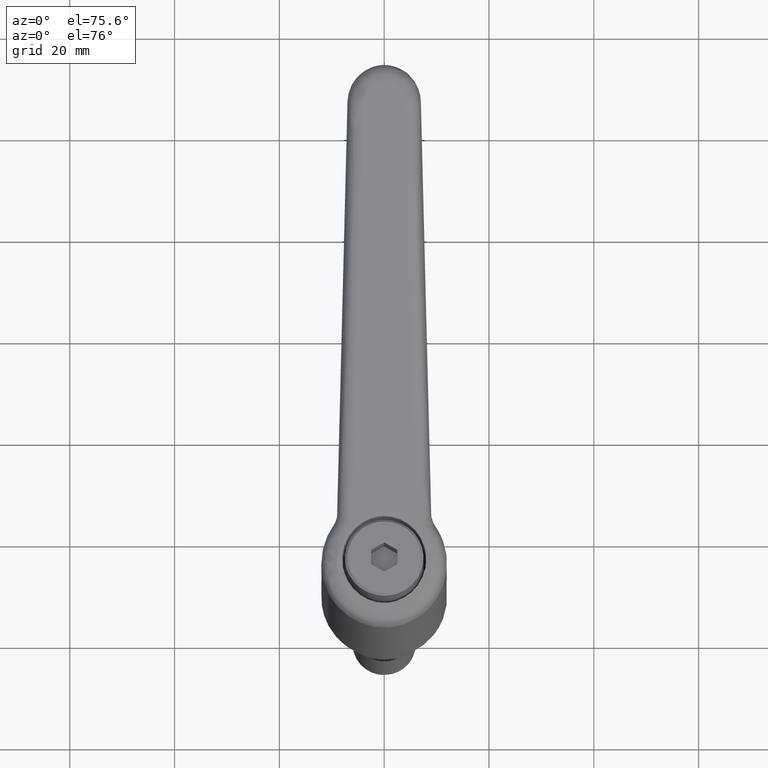
[diagram: clean part render]
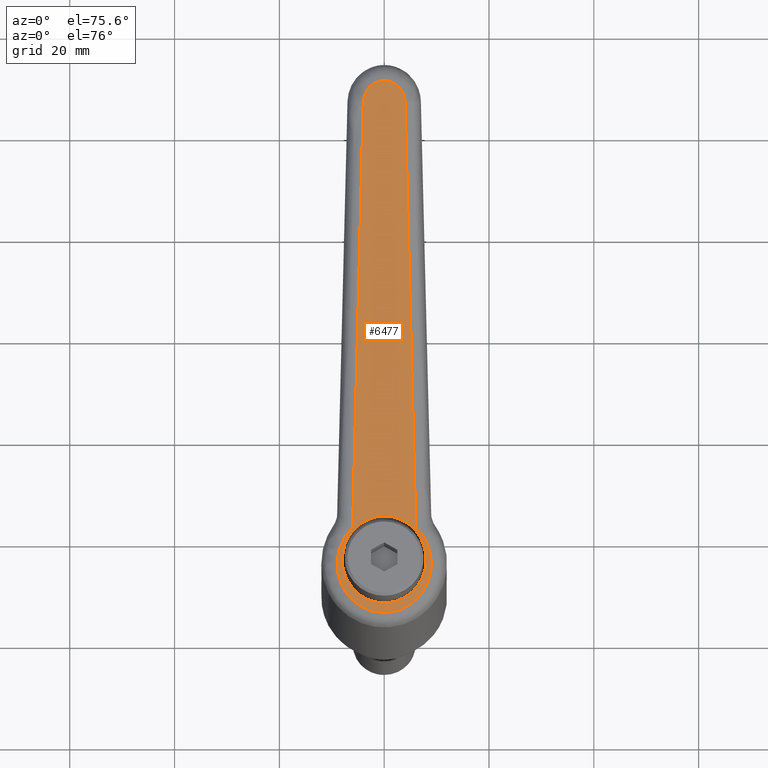
[diagram: same view with one face highlighted and labeled with its STEP entity id]
A machine part, auxiliary view. The second image highlights one B-rep face of the part: STEP entity #6477.
In plain terms, the highlighted face is a freeform B-spline surface patch.
Its self-contained STEP definition (entity closure, byte-faithful):
#1632=CARTESIAN_POINT('',(-0.069812284174285,-7.999695384511735,41.126496373915330));
#1633=VERTEX_POINT('',#1632);
#1639=CARTESIAN_POINT('',(8.000000000000002,9.796851E-016,43.299138101593670));
#1640=VERTEX_POINT('',#1639);
#1641=CARTESIAN_POINT('',(8.000000000000002,9.796851E-016,43.299138101593670));
#1642=CARTESIAN_POINT('',(8.000000000000002,-8.0,43.299138101593677));
#1643=CARTESIAN_POINT('',(1.469528E-015,-8.0,41.145291988563848));
#1644=CARTESIAN_POINT('',(-0.034906806752929,-8.0,41.135894002308468));
#1645=CARTESIAN_POINT('',(-0.069812284174285,-7.999695384511735,41.126496373915330));
#1653=(BOUNDED_CURVE()B_SPLINE_CURVE(2,(#1641,#1642,#1643,#1644,#1645),.UNSPECIFIED.,.F.,.U.)B_SPLINE_CURVE_WITH_KNOTS((3,2,3),(0.500000000000000,0.750000000000000,0.751539894343236),.UNSPECIFIED.)CURVE()GEOMETRIC_REPRESENTATION_ITEM()RATIONAL_B_SPLINE_CURVE((1.0,0.707106781186547,1.0,0.998195901556708,0.996414028081316))REPRESENTATION_ITEM(''));
#1654=EDGE_CURVE('',#1640,#1633,#1653,.T.);
#1656=CARTESIAN_POINT('',(-1.327507631894664,7.889088888284972,40.787886094431933));
#1657=VERTEX_POINT('',#1656);
#1658=CARTESIAN_POINT('',(-1.327507631894664,7.889088888284972,40.787886094431933));
#1659=CARTESIAN_POINT('',(-0.668387037808812,8.0,40.965341635640840));
#1660=CARTESIAN_POINT('',(-4.898425E-016,8.0,41.145291988563848));
#1661=CARTESIAN_POINT('',(8.000000000000002,8.0,43.299138101593677));
#1662=CARTESIAN_POINT('',(8.000000000000002,9.796851E-016,43.299138101593670));
#1670=(BOUNDED_CURVE()B_SPLINE_CURVE(2,(#1658,#1659,#1660,#1661,#1662),.UNSPECIFIED.,.F.,.U.)B_SPLINE_CURVE_WITH_KNOTS((3,2,3),(0.221449239580512,0.250000000000000,0.500000000000000),.UNSPECIFIED.)CURVE()GEOMETRIC_REPRESENTATION_ITEM()RATIONAL_B_SPLINE_CURVE((0.940741429848260,0.966550703524658,1.0,0.707106781186547,1.0))REPRESENTATION_ITEM(''));
#1671=EDGE_CURVE('',#1657,#1640,#1670,.T.);
#1719=CARTESIAN_POINT('',(-8.000000000000002,0.0,38.991445875534033));
#1720=VERTEX_POINT('',#1719);
#1721=CARTESIAN_POINT('',(-8.000000000000002,0.0,38.991445875534033));
#1722=CARTESIAN_POINT('',(-8.000000000000002,6.766299594342494,38.991445875534033));
#1723=CARTESIAN_POINT('',(-1.327507631894664,7.889088888284972,40.787886094431933));
#1731=(BOUNDED_CURVE()B_SPLINE_CURVE(2,(#1721,#1722,#1723),.UNSPECIFIED.,.F.,.U.)B_SPLINE_CURVE_WITH_KNOTS((3,3),(0.0,0.221449239580512),.UNSPECIFIED.)CURVE()GEOMETRIC_REPRESENTATION_ITEM()RATIONAL_B_SPLINE_CURVE((1.0,0.740556077661889,0.940741429848260))REPRESENTATION_ITEM(''));
#1732=EDGE_CURVE('',#1720,#1657,#1731,.T.);
#1734=CARTESIAN_POINT('',(-0.069812284174285,-7.999695384511735,41.126496373915330));
#1735=CARTESIAN_POINT('',(-8.000000000000002,-7.930489684388462,38.991445875534019));
#1736=CARTESIAN_POINT('',(-8.000000000000002,0.0,38.991445875534033));
#1744=(BOUNDED_CURVE()B_SPLINE_CURVE(2,(#1734,#1735,#1736),.UNSPECIFIED.,.F.,.U.)B_SPLINE_CURVE_WITH_KNOTS((3,3),(0.751539894343235,1.0),.UNSPECIFIED.)CURVE()GEOMETRIC_REPRESENTATION_ITEM()RATIONAL_B_SPLINE_CURVE((0.996414028081318,0.708910879629838,1.0))REPRESENTATION_ITEM(''));
#1745=EDGE_CURVE('',#1633,#1720,#1744,.T.);
#4712=CARTESIAN_POINT('',(5.899904612967671,6.031578376217630,42.733727815799909));
#4713=VERTEX_POINT('',#4712);
#5053=CARTESIAN_POINT('',(5.899904612967671,-6.031578376217630,42.733727815799909));
#5054=VERTEX_POINT('',#5053);
#5911=CARTESIAN_POINT('',(84.323733728328804,-3.998657468763855,63.847835254429292));
#5912=VERTEX_POINT('',#5911);
#5913=CARTESIAN_POINT('',(5.899904612967671,-6.031578376217630,42.733727815799909));
#5914=CARTESIAN_POINT('',(84.323733728328804,-3.998657468763855,63.847835254429292));
#5915=QUASI_UNIFORM_CURVE('',1,(#5913,#5914),.UNSPECIFIED.,.F.,.U.);
#5916=EDGE_CURVE('',#5054,#5912,#5915,.T.);
#6122=CARTESIAN_POINT('',(5.899904612967675,6.031578376217627,42.733727815799952));
#6123=CARTESIAN_POINT('',(1.757638131539693,10.619036841369187,41.618502245780277));
#6124=CARTESIAN_POINT('',(-4.011141137511500,8.399953130100588,40.065369395083657));
#6125=CARTESIAN_POINT('',(-9.779920406562695,6.180869418831987,38.512236544387058));
#6126=CARTESIAN_POINT('',(-9.779920406562695,1.019790E-014,38.512236544387051));
#6127=CARTESIAN_POINT('',(-9.779920406562695,-6.180869418831974,38.512236544387058));
#6128=CARTESIAN_POINT('',(-4.011141137511519,-8.399953130100581,40.065369395083657));
#6129=CARTESIAN_POINT('',(1.757638131539669,-10.619036841369194,41.618502245780277));
#6130=CARTESIAN_POINT('',(5.899904612967661,-6.031578376217643,42.733727815799952));
#6138=(BOUNDED_CURVE()B_SPLINE_CURVE(2,(#6122,#6123,#6124,#6125,#6126,#6127,#6128,#6129,#6130),.UNSPECIFIED.,.F.,.U.)B_SPLINE_CURVE_WITH_KNOTS((3,2,2,2,3),(0.0,0.250000000000000,0.500000000000000,0.750000000000000,1.0),.UNSPECIFIED.)CURVE()GEOMETRIC_REPRESENTATION_ITEM()RATIONAL_B_SPLINE_CURVE((1.0,0.824325337976756,1.0,0.824325337976756,1.0,0.824325337976756,1.0,0.824325337976756,1.0))REPRESENTATION_ITEM(''));
#6139=EDGE_CURVE('',#4713,#5054,#6138,.T.);
#6227=CARTESIAN_POINT('',(84.323733712413699,3.998657469176409,63.847835250144492));
#6228=VERTEX_POINT('',#6227);
#6244=CARTESIAN_POINT('',(84.323733728328804,-3.998657468763855,63.847835254429292));
#6245=CARTESIAN_POINT('',(88.220079601193873,-3.897655442800466,64.896851431090582));
#6246=CARTESIAN_POINT('',(88.220079593437333,7.960209E-009,64.896851429002282));
#6247=CARTESIAN_POINT('',(88.220079585680764,3.897655458720884,64.896851426914012));
#6248=CARTESIAN_POINT('',(84.323733712413699,3.998657469176409,63.847835250144492));
#6256=(BOUNDED_CURVE()B_SPLINE_CURVE(2,(#6244,#6245,#6246,#6247,#6248),.UNSPECIFIED.,.F.,.U.)B_SPLINE_CURVE_WITH_KNOTS((3,2,3),(0.0,0.500000000000000,1.0),.UNSPECIFIED.)CURVE()GEOMETRIC_REPRESENTATION_ITEM()RATIONAL_B_SPLINE_CURVE((1.0,0.716210001233395,1.0,0.716210001233395,1.0))REPRESENTATION_ITEM(''));
#6257=EDGE_CURVE('',#5912,#6228,#6256,.T.);
#6298=CARTESIAN_POINT('',(84.323733712413699,3.998657469176409,63.847835250144492));
#6299=CARTESIAN_POINT('',(5.899904612967671,6.031578376217630,42.733727815799909));
#6300=QUASI_UNIFORM_CURVE('',1,(#6298,#6299),.UNSPECIFIED.,.F.,.U.);
#6301=EDGE_CURVE('',#6228,#4713,#6300,.T.);
#6460=CARTESIAN_POINT('',(-14.675019866494340,-9.891537189848924,37.194325176303423));
#6461=CARTESIAN_POINT('',(93.115174672427855,-9.891537189848924,66.214761617601681));
#6462=CARTESIAN_POINT('',(-14.675019866494340,9.891537674040153,37.194325176303423));
#6463=CARTESIAN_POINT('',(93.115174672427855,9.891537674040153,66.214761617601681));
#6464=B_SPLINE_SURFACE_WITH_KNOTS('',1,1,((#6460,#6462),(#6461,#6463)),.UNSPECIFIED.,.F.,.F.,.U.,(2,2),(2,2),(0.0,111.628454123409400),(0.0,19.783074863889080),.UNSPECIFIED.);
#6465=ORIENTED_EDGE('',*,*,#5916,.T.);
#6466=ORIENTED_EDGE('',*,*,#6257,.T.);
#6467=ORIENTED_EDGE('',*,*,#6301,.T.);
#6468=ORIENTED_EDGE('',*,*,#6139,.T.);
#6469=EDGE_LOOP('',(#6465,#6466,#6467,#6468));
#6470=FACE_OUTER_BOUND('',#6469,.T.);
#6471=ORIENTED_EDGE('',*,*,#1654,.T.);
#6472=ORIENTED_EDGE('',*,*,#1745,.T.);
#6473=ORIENTED_EDGE('',*,*,#1732,.T.);
#6474=ORIENTED_EDGE('',*,*,#1671,.T.);
#6475=EDGE_LOOP('',(#6471,#6472,#6473,#6474));
#6476=FACE_BOUND('',#6475,.T.);
#6477=ADVANCED_FACE('',(#6470,#6476),#6464,.T.);